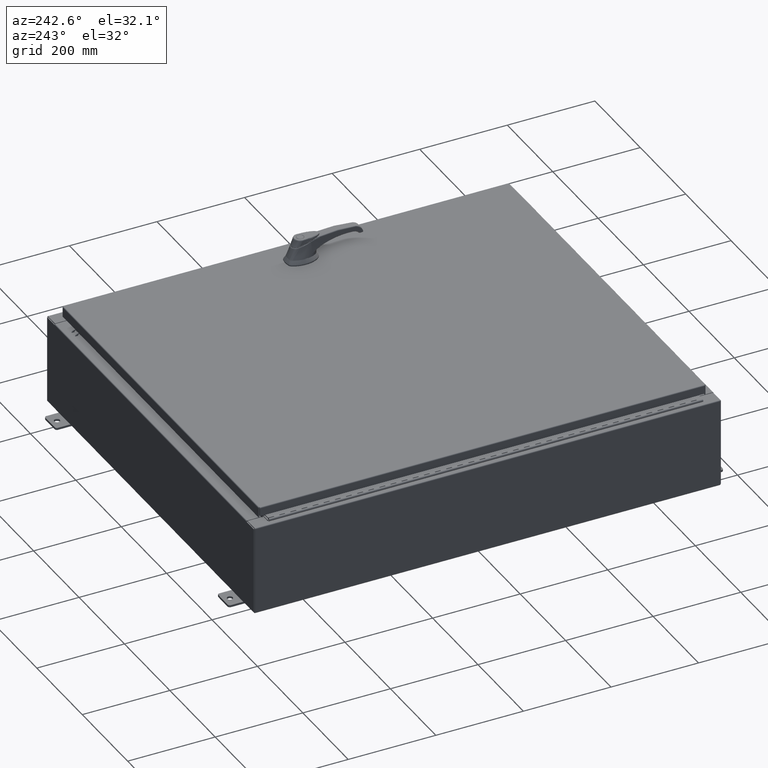
[diagram: clean part render]
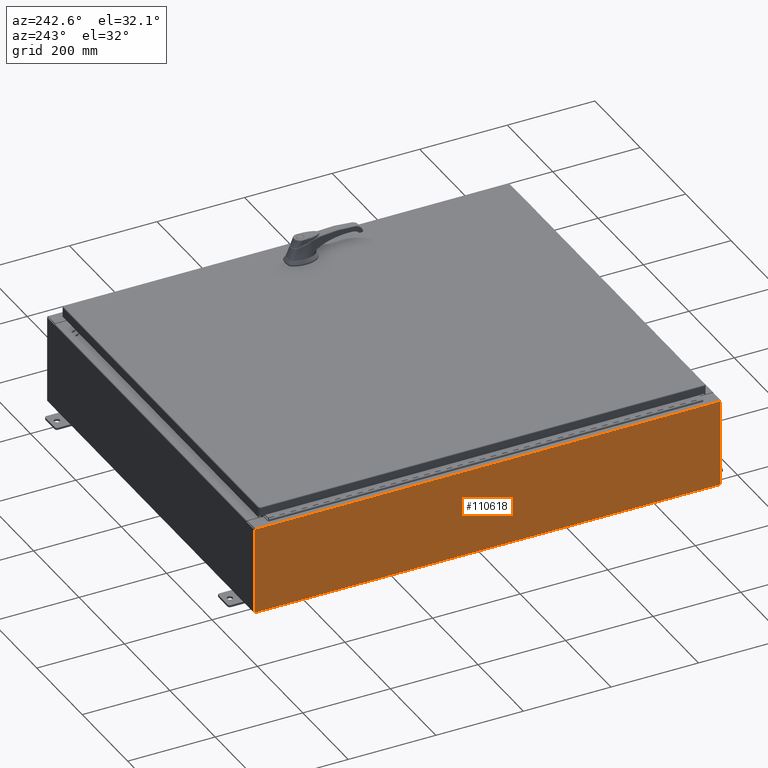
[diagram: same view with one face highlighted and labeled with its STEP entity id]
A machine part, auxiliary view. The second image highlights one B-rep face of the part: STEP entity #110618.
In plain terms, the highlighted planar face has unit normal (1, 0, 0).
Its self-contained STEP definition (entity closure, byte-faithful):
#658 = CARTESIAN_POINT ( 'NONE',  ( -17.99999999999999600, 20.92529999999999600, 0.01299999999999983600 ) ) ;
#1407 = CARTESIAN_POINT ( 'NONE',  ( -17.99999999999999600, 20.92529999999999600, 0.01299999999999984700 ) ) ;
#2924 = VERTEX_POINT ( 'NONE', #29580 ) ;
#9256 = VECTOR ( 'NONE', #11375, 39.37007874015748100 ) ;
#10515 = ORIENTED_EDGE ( 'NONE', *, *, #22695, .T. ) ;
#11375 = DIRECTION ( 'NONE',  ( -0.0000000000000000000, 1.000000000000000000, -0.0000000000000000000 ) ) ;
#17184 = VECTOR ( 'NONE', #102704, 39.37007874015748100 ) ;
#20908 = CARTESIAN_POINT ( 'NONE',  ( -17.99999999999999600, 0.0000000000000000000, -6.478858477053722900E-014 ) ) ;
#22695 = EDGE_CURVE ( 'NONE', #105543, #2924, #57944, .T. ) ;
#22879 = CARTESIAN_POINT ( 'NONE',  ( -17.99999999999999600, 20.92529999999999600, -6.478858477053722900E-014 ) ) ;
#25444 = VECTOR ( 'NONE', #58798, 39.37007874015748100 ) ;
#29580 = CARTESIAN_POINT ( 'NONE',  ( -18.00000000000002500, -20.92529999999999300, 7.837599999999999200 ) ) ;
#37292 = LINE ( 'NONE', #43386, #17184 ) ;
#38848 = VECTOR ( 'NONE', #112063, 39.37007874015748100 ) ;
#40810 = DIRECTION ( 'NONE',  ( 1.000000000000000000, 0.0000000000000000000, 3.584876173029202900E-015 ) ) ;
#41760 = LINE ( 'NONE', #1407, #9256 ) ;
#42544 = EDGE_CURVE ( 'NONE', #2924, #101287, #37292, .T. ) ;
#43386 = CARTESIAN_POINT ( 'NONE',  ( -18.00000000000002500, -20.92529999999999600, 7.837599999999999200 ) ) ;
#57944 = LINE ( 'NONE', #117772, #25444 ) ;
#58798 = DIRECTION ( 'NONE',  ( -3.584876173029202900E-015, 0.0000000000000000000, 1.000000000000000000 ) ) ;
#61156 = VERTEX_POINT ( 'NONE', #658 ) ;
#62556 = EDGE_CURVE ( 'NONE', #101287, #61156, #65131, .T. ) ;
#65131 = LINE ( 'NONE', #22879, #38848 ) ;
#65714 = FACE_OUTER_BOUND ( 'NONE', #72454, .T. ) ;
#67375 = AXIS2_PLACEMENT_3D ( 'NONE', #20908, #40810, #110080 ) ;
#72454 = EDGE_LOOP ( 'NONE', ( #89115, #117342, #94296, #10515 ) ) ;
#73782 = CARTESIAN_POINT ( 'NONE',  ( -17.99999999999999600, -20.92529999999999300, 0.01299999999999984700 ) ) ;
#89115 = ORIENTED_EDGE ( 'NONE', *, *, #42544, .T. ) ;
#94296 = ORIENTED_EDGE ( 'NONE', *, *, #103963, .F. ) ;
#100155 = PLANE ( 'NONE',  #67375 ) ;
#101287 = VERTEX_POINT ( 'NONE', #105047 ) ;
#102704 = DIRECTION ( 'NONE',  ( 0.0000000000000000000, 1.000000000000000000, 0.0000000000000000000 ) ) ;
#103963 = EDGE_CURVE ( 'NONE', #105543, #61156, #41760, .T. ) ;
#105047 = CARTESIAN_POINT ( 'NONE',  ( -18.00000000000002500, 20.92529999999999600, 7.837599999999999200 ) ) ;
#105543 = VERTEX_POINT ( 'NONE', #73782 ) ;
#110080 = DIRECTION ( 'NONE',  ( 3.584876173029202900E-015, 0.0000000000000000000, -1.000000000000000000 ) ) ;
#110618 = ADVANCED_FACE ( 'NONE', ( #65714 ), #100155, .F. ) ;
#112063 = DIRECTION ( 'NONE',  ( 3.584876173029202900E-015, 0.0000000000000000000, -1.000000000000000000 ) ) ;
#117342 = ORIENTED_EDGE ( 'NONE', *, *, #62556, .T. ) ;
#117772 = CARTESIAN_POINT ( 'NONE',  ( -17.99999999999999600, -20.92530000000000400, -6.478858477053722900E-014 ) ) ;